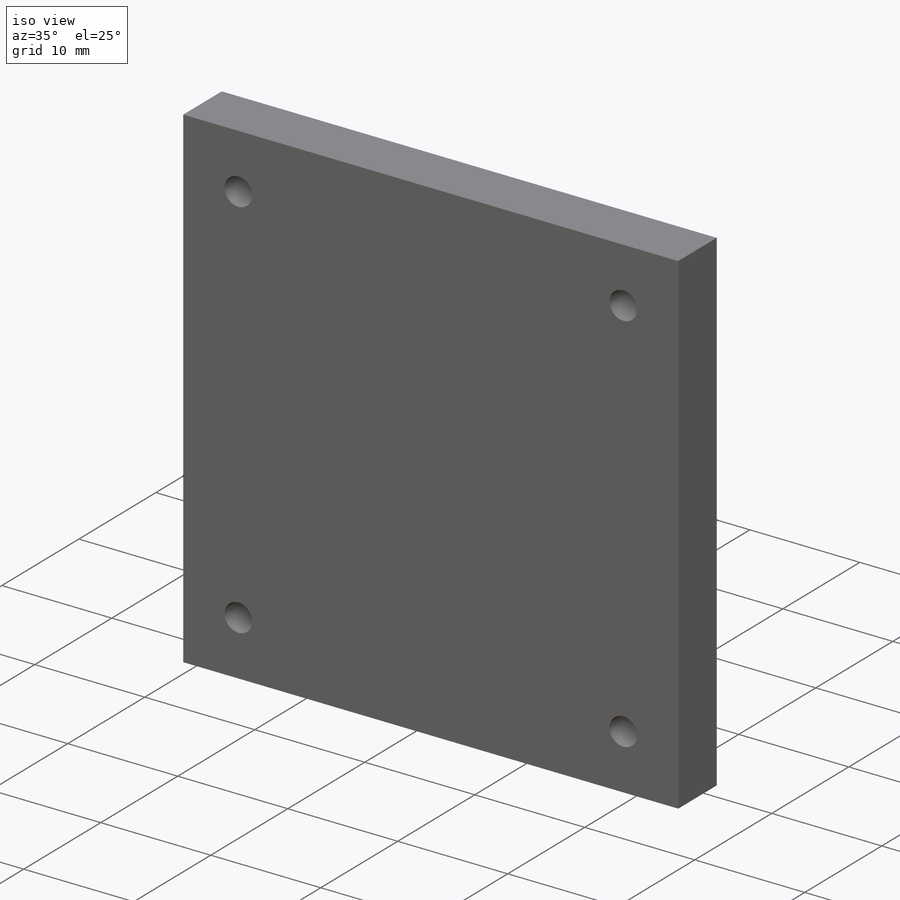
[diagram: iso view]
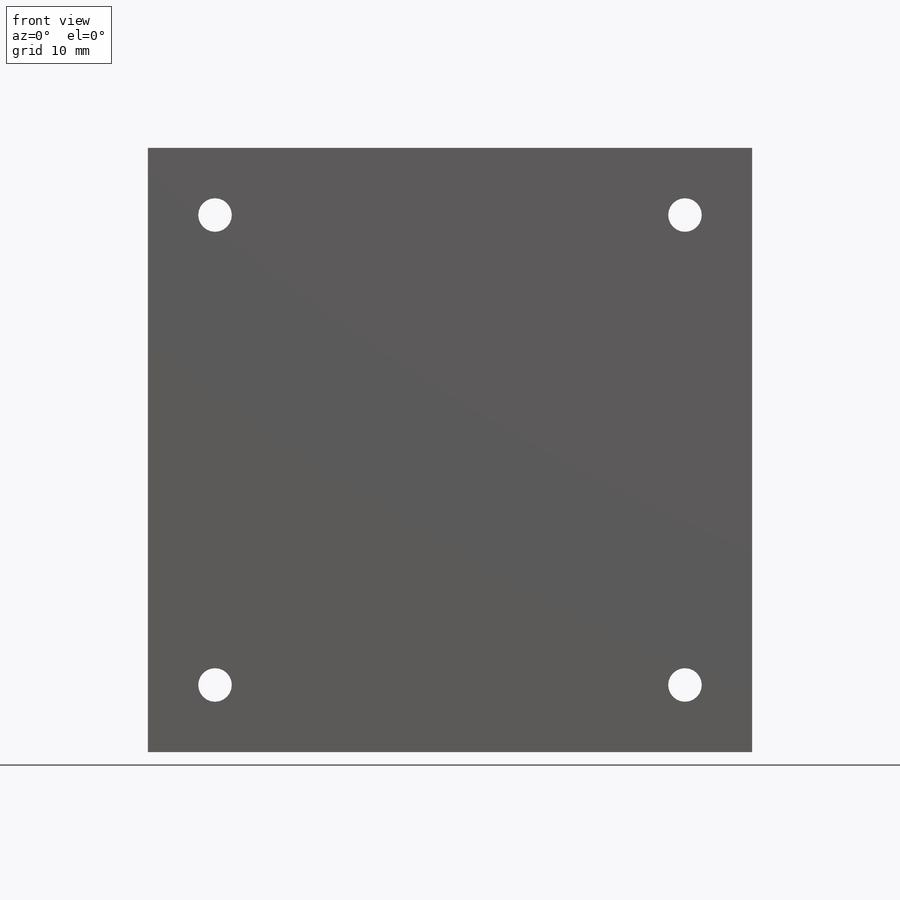
[diagram: front view]
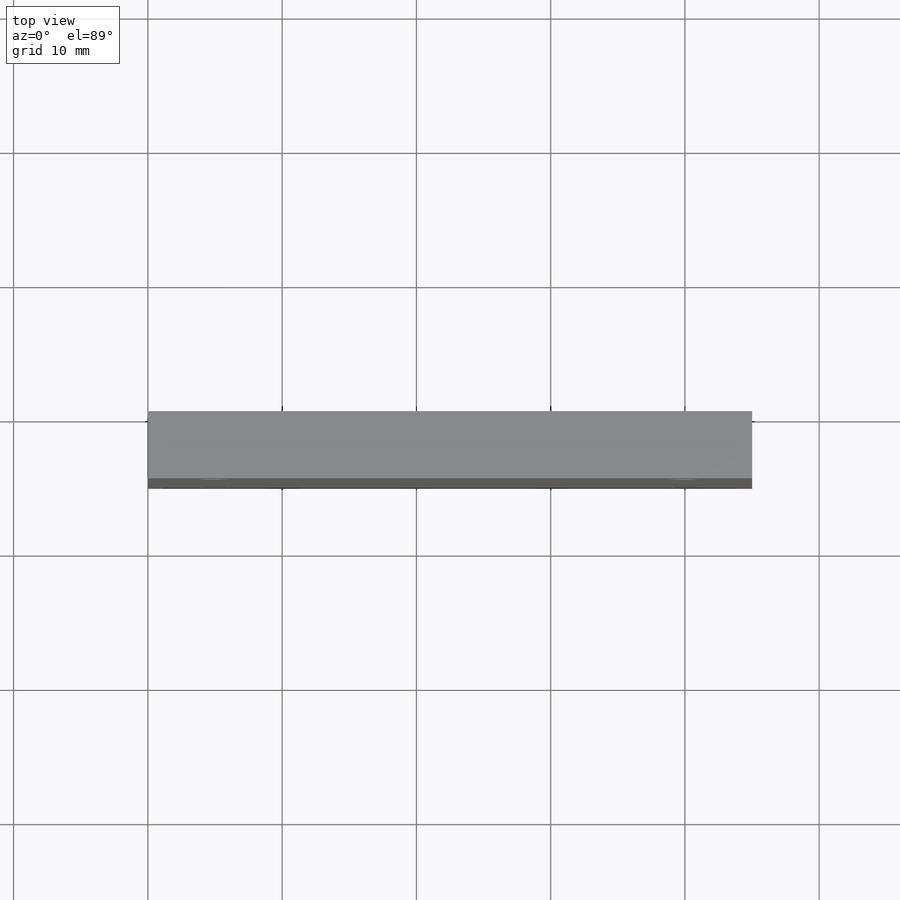
[diagram: top view]
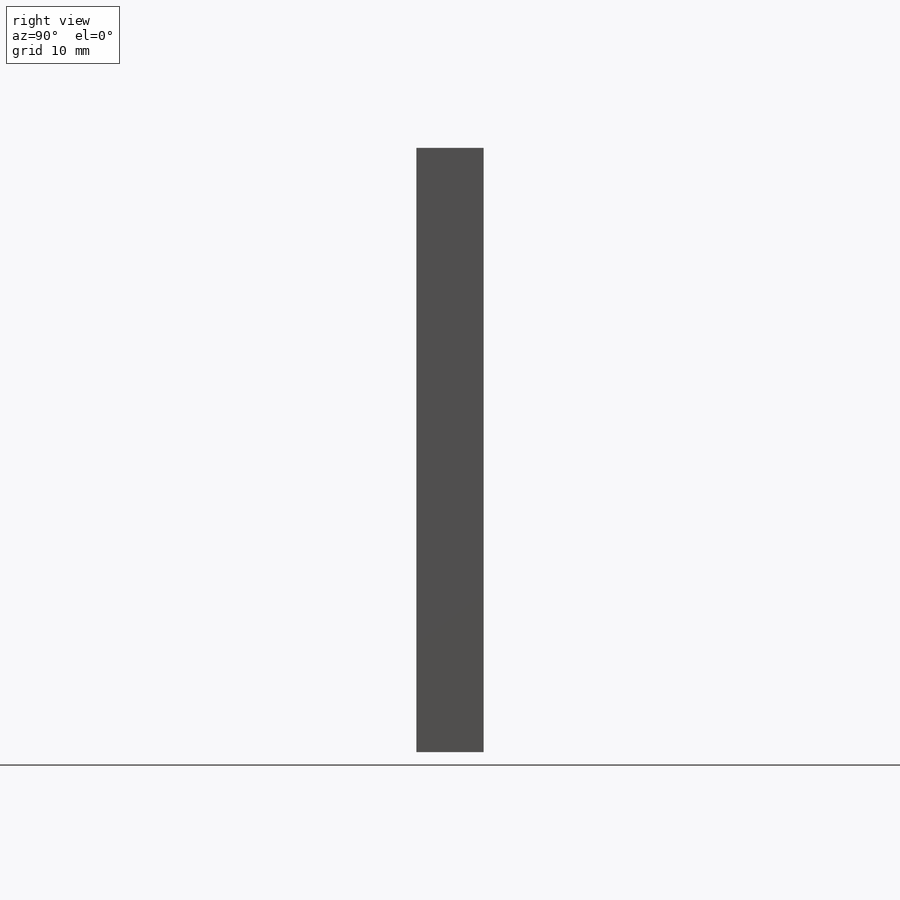
[diagram: right view]
SOLIDWORKS PART (.sldprt)
format: sldprt  version: not decoded by parser v0  size: 152,576 bytes
history: native  units: mm
features: plane x3, sketch x3, material x1, extrude x1, hole x1 (+13 scaffold rows collapsed)
feature tree (22):
  scaffold x13  (default folders/planes/origin — collapsed)
  material  "Matériau <non spécifié>"
  plane  "Plan de face"
  plane  "Plan de dessus"
  plane  "Plan de droite"
  sketch  "Esquisse1"  dims[c1.D1=150.0mm c2.D1=90.0deg c3.D1=45.0mm c3.D2=45.0mm]
  extrude  "Boss.-Extru.1"  Depth=5mm
  hole  "Trou pour taraudage pour trou taraudé M3x0.51"  Diameter=2.5mm Depth=10mm
  sketch  "Esquisse3"  dims[c1.D1=5.0mm c1.D2=5.0mm c1.D3=5.0mm c1.D4=5.0mm c1.D5=5.0mm c1.D6=~5.000185mm c2.D6=90.0deg c3.D6=5.0mm c3.D7=5.0mm c3.D8=5.0mm c3.D1=5.0mm c3.D2=5.0mm c3.D3=5.0mm c3.D4=~13.737579mm c4.D4=90.0deg c5.D4=5.0mm c5.D5=10.0mm c5.D6=10.0mm c5.D7=10.0mm c5.D8=5.0mm c5.D9=37.5mm c5.D10=37.5mm c6.D5=5.0mm c6.D6=5.0mm c6.D7=5.0mm c6.D8=5.0mm]
  sketch  "Esquisse2"  dims[hole-wizard template sketch: 47 standard entries collapsed; hole parameters kept: c15.Profondeur du perçage=10.0mm c15.D3=~14.816244mm c15.Angle de pointe=118.0deg]
decode coverage: 5 of 5 modeling features carry decoded parameters
note: ~ marks probable driven/reference dimensions
note: suppression state not decoded; provenance and decode notes live in map.json
